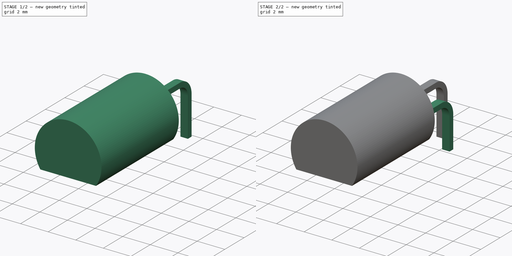
[diagram: build sequence overview — one tinted view per stage of 2, left to right]
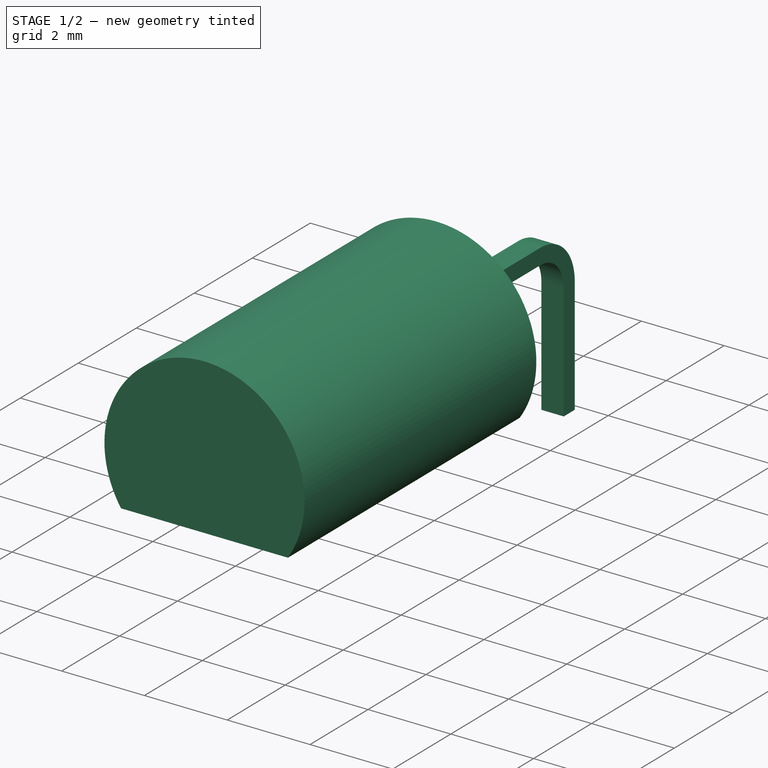
[diagram: stage 1 of 2 — iso view after this stage's code; geometry added in this stage tinted green]
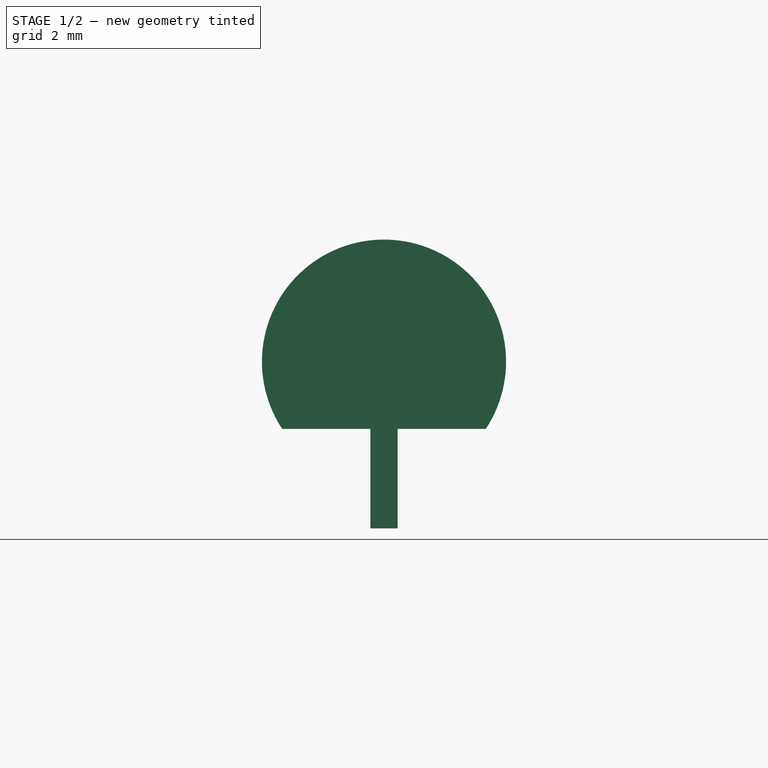
[diagram: stage 1 of 2 — front view after this stage's code; geometry added in this stage tinted green]
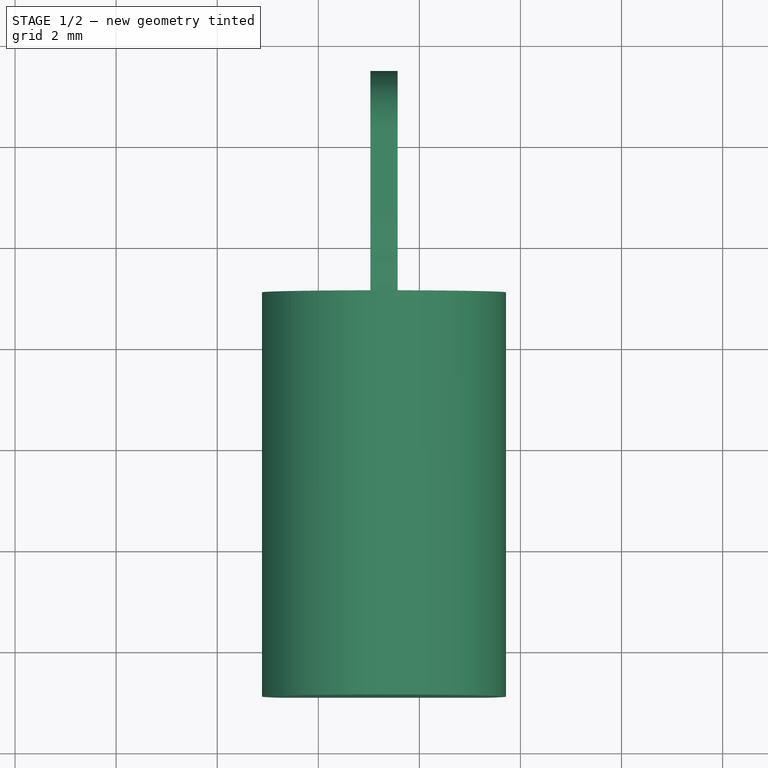
[diagram: stage 1 of 2 — top view after this stage's code; geometry added in this stage tinted green]
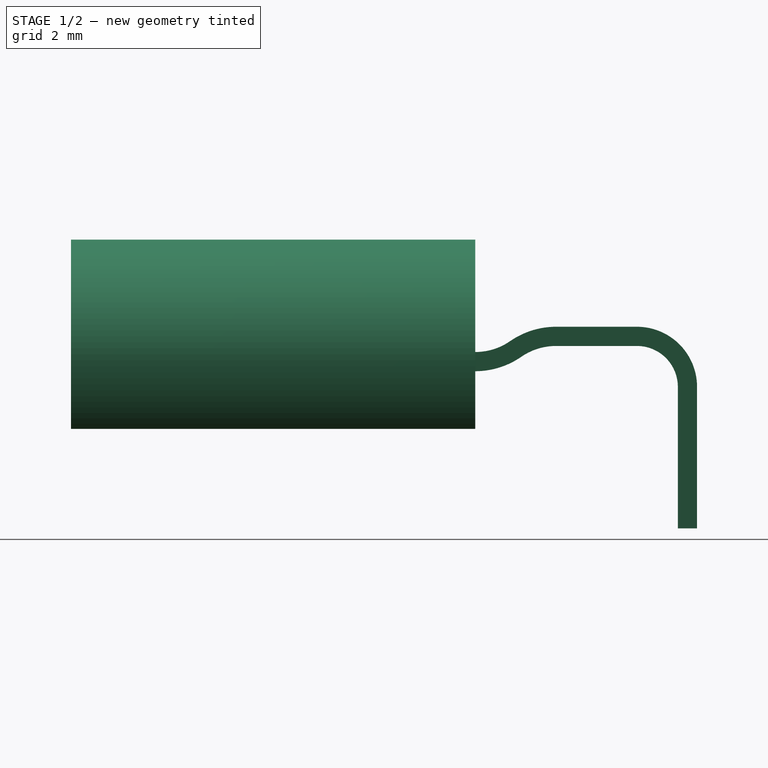
[diagram: stage 1 of 2 — right view after this stage's code; geometry added in this stage tinted green]
FCSTD DOCUMENT  (FreeCAD 1.0R38806 (Git))
Label: TO-92L bent
License: All rights reserved
LicenseURL: http://en.wikipedia.org/wiki/All_rights_reserved
objects: Sketcher::SketchObject×10, PartDesign::SubShapeBinder×8, PartDesign::Body×5, PartDesign::AdditivePipe×3, PartDesign::Plane×2, PartDesign::Pad×1
note: 47 computed .brp shape members not serialized (recipe doc carries the construction recipe); baked Part::Feature solids carry a one-line shape summary decoded from their .brp

FEATURE [PartDesign::Body] Body002  label="Pin 2"
  AllowCompound = false
  Group = -> [Binder002,Binder003,Sketch007,Sketch008,AdditivePipe001]
  Origin = -> Origin003
  Tip = -> AdditivePipe001
FEATURE [PartDesign::SubShapeBinder] Binder004  label="p3 ref footprint"
  BindCopyOnChange = 0
  BindMode = 0
  ClaimChildren = false
  Context = -> Body003 [Binder004.]
  Fuse = false
  MakeFace = true
  OffsetFill = false
  OffsetIntersection = false
  OffsetJoinType = 0
  OffsetOpenResult = false
  PartialLoad = false
  Refine = true
  Relative = true
  Support = -> [Body[Sketch.]]
  _Version = 2
FEATURE [PartDesign::SubShapeBinder] Binder005  label="p3 ref curve"
  BindCopyOnChange = 0
  BindMode = 0
  ClaimChildren = false
  Context = -> Body003 [Binder005.]
  Fuse = false
  MakeFace = true
  OffsetFill = false
  OffsetIntersection = false
  OffsetJoinType = 0
  OffsetOpenResult = false
  PartialLoad = false
  Refine = true
  Relative = true
  Support = -> [Body[Sketch001.]]
  _Version = 2
FEATURE [Sketcher::SketchObject] Sketch009  label="p3 pin trj"
  ArcFitTolerance = 1e-06
  AttachmentSupport = -> [YZ_Plane004]
  ExternalGeometry = -> [Binder004,Binder005]
  FullyConstrained = true
  MakeInternals = false
  MapMode = 5
  Placement = pos=(0,0,0) rot=(0.57735,0.57735,0.57735;2.0944rad)
  sketch-geometry (5):
    g0: LineSegment StartX=1.27 StartY=-2 StartZ=0 EndX=1.27 EndY=0.8 EndZ=0
    g1: ArcOfCircle CenterX=0.27 CenterY=0.8 CenterZ=0 NormalX=0 NormalY=0 NormalZ=1 AngleXU=0 Radius=1 StartAngle=8.8e-15 EndAngle=1.5708
    g2: ArcOfCircle CenterX=-2.9292 CenterY=2.705 CenterZ=0 NormalX=0 NormalY=0 NormalZ=1 AngleXU=0 Radius=1.405 StartAngle=4.71239 EndAngle=5.31816
    g3: ArcOfCircle CenterX=-1.3292 CenterY=0.395 CenterZ=0 NormalX=0 NormalY=0 NormalZ=1 AngleXU=0 Radius=1.405 StartAngle=1.5708 EndAngle=2.17657
    g4: LineSegment StartX=-1.3292 StartY=1.8 StartZ=0 EndX=0.27 EndY=1.8 EndZ=0
  constraints (13):
    c: Vertical(g0)
    c: PointOnObject(g-3,g0)
    c: Horizontal(g-4,g0)
    c: Tangent(g2,g3) = 1.5708
    c: Horizontal(g4)
    c: Tangent(g0,g1) = -1.5708
    c: Tangent(g1,g4) = 1.5708
    c: Equal(g-6,g1)
    c: Tangent(g3,g4) = 1.5708
    c: DistanceY(g-6,g3) = 0.5
    c: Equal(g3,g2)
    c: Tangent(g2,g-5) = 1.5708
    c: DistanceX(g2,g3) = 1.6
FEATURE [Sketcher::SketchObject] Sketch010  label="p3 pin crs"
  ArcFitTolerance = 1e-06
  AttachmentSupport = -> [XY_Plane004]
  ExternalGeometry = -> [Binder004]
  FullyConstrained = true
  MakeInternals = false
  MapMode = 5
  sketch-geometry (4):
    g0: LineSegment StartX=1.03 StartY=1.46 StartZ=0 EndX=1.03 EndY=1.08 EndZ=0
    g1: LineSegment StartX=1.03 StartY=1.08 StartZ=0 EndX=1.57 EndY=1.08 EndZ=0
    g2: LineSegment StartX=1.57 StartY=1.08 StartZ=0 EndX=1.57 EndY=1.46 EndZ=0
    g3: LineSegment StartX=1.57 StartY=1.46 StartZ=0 EndX=1.03 EndY=1.46 EndZ=0
  constraints (10):
    c: Coincident(g0,g1)
    c: Coincident(g1,g2)
    c: Coincident(g2,g3)
    c: Coincident(g3,g0)
    c: Vertical(g0)
    c: Vertical(g2)
    c: Horizontal(g1)
    c: Horizontal(g3)
    c: Coincident(g0,g-3)
    c: Coincident(g2,g-4)
FEATURE [PartDesign::AdditivePipe] AdditivePipe002
  AuxilleryCurvelinear = true
  AuxillerySpineTangent = false
  Binormal = (0,0,0)
  Mode = 0
  Profile = -> Sketch010
  Refine = true
  Spine = -> Sketch009
  SpineTangent = false
  Suppressed = false
  Transformation = 0
  Transition = 0
FEATURE [PartDesign::Body] Body003  label="Pin 3"
  AllowCompound = false
  Group = -> [Binder004,Binder005,Sketch009,Sketch010,AdditivePipe002]
  Origin = -> Origin004
  Tip = -> AdditivePipe002
FEATURE [PartDesign::SubShapeBinder] Binder007  label="hs ref housing"
  BindCopyOnChange = 0
  BindMode = 0
  ClaimChildren = false
  Context = -> Body004 [Binder007.]
  Fuse = false
  MakeFace = true
  OffsetFill = false
  OffsetIntersection = false
  OffsetJoinType = 0
  OffsetOpenResult = false
  PartialLoad = false
  Refine = true
  Relative = true
  Support = -> [Body[Sketch004.]]
  _Version = 2
FEATURE [PartDesign::SubShapeBinder] Binder008  label="hs ref pins curve"
  BindCopyOnChange = 0
  BindMode = 0
  ClaimChildren = false
  Context = -> Body004 [Binder008.]
  Fuse = false
  MakeFace = true
  OffsetFill = false
  OffsetIntersection = false
  OffsetJoinType = 0
  OffsetOpenResult = false
  PartialLoad = false
  Refine = true
  Relative = true
  Support = -> [Body[Sketch001.]]
  _Version = 2
FEATURE [PartDesign::Plane] DatumPlane001  label="hs pln housing"
  AttachmentSupport = -> [Binder008]
  Length = 60
  MapMode = 7
  Placement = pos=(0,-2.9292,1.3) rot=(0,0.707107,0.707107;3.14159rad)
  ResizeMode = 0
  Width = 60
FEATURE [Sketcher::SketchObject] Sketch011
  ArcFitTolerance = 1e-06
  AttachmentSupport = -> [DatumPlane001]
  ExternalGeometry = -> [Binder007]
  FullyConstrained = true
  MakeInternals = false
  MapMode = 5
  Placement = pos=(0,-2.9292,1.3) rot=(0,0.707107,0.707107;3.14159rad)
  sketch-geometry (2):
    g0: ArcOfCircle CenterX=-1.3 CenterY=2e-16 CenterZ=0 NormalX=0 NormalY=0 NormalZ=1 AngleXU=0 Radius=2.415 StartAngle=5.69995 EndAngle=10.008
    g1: LineSegment StartX=-3.31577 StartY=-1.33 StartZ=0 EndX=0.715769 EndY=-1.33 EndZ=0
  constraints (5):
    c: Coincident(g0,g-3)
    c: Coincident(g1,g0)
    c: Coincident(g1,g0)
    c: Horizontal(g1)
    c: Coincident(g0,g-3)
FEATURE [PartDesign::Pad] Pad  label="HS Housing"
  Direction = (0,1,-2e-16)
  Length = 8
  Length2 = 10
  Placement = pos=(0,-2.9292,1.3) rot=(0,0.707107,0.707107;3.14159rad)
  Profile = -> Sketch011
  ReferenceAxis = -> Sketch011 [N_Axis]
  Refine = true
  Reversed = true
  Suppressed = false
  Type = 0
FEATURE [PartDesign::Body] Body004  label="Housing"
  AllowCompound = false
  Group = -> [Binder007,Binder008,DatumPlane001,Sketch011,Pad]
  Origin = -> Origin005
  Tip = -> Pad
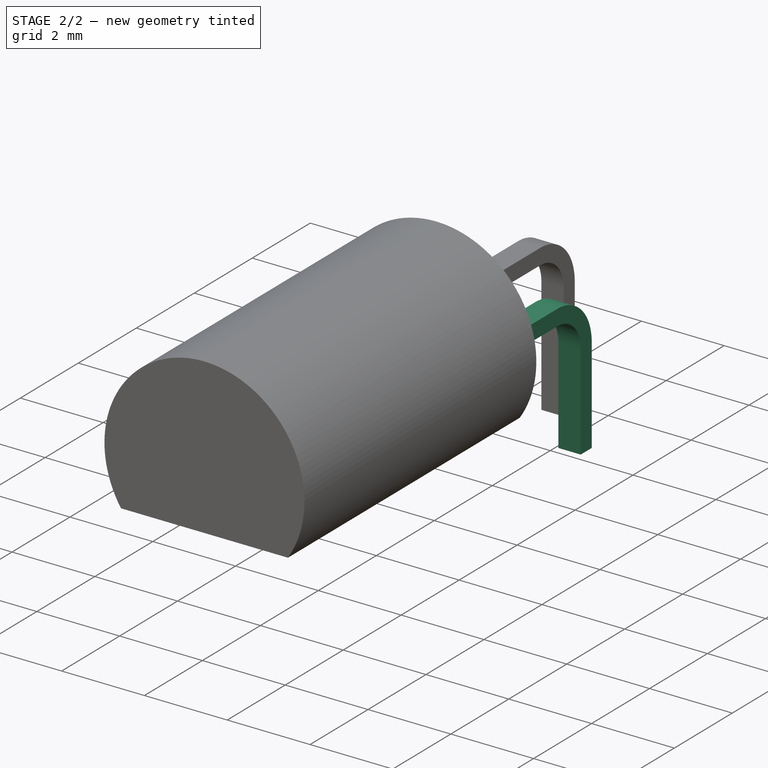
[diagram: stage 2 of 2 — iso view after this stage's code; geometry added in this stage tinted green]
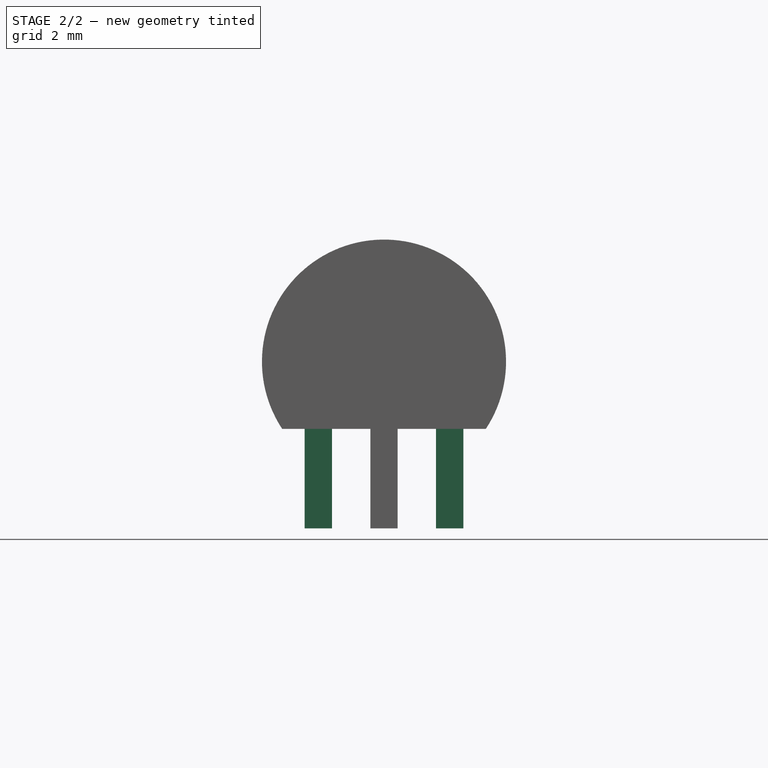
[diagram: stage 2 of 2 — front view after this stage's code; geometry added in this stage tinted green]
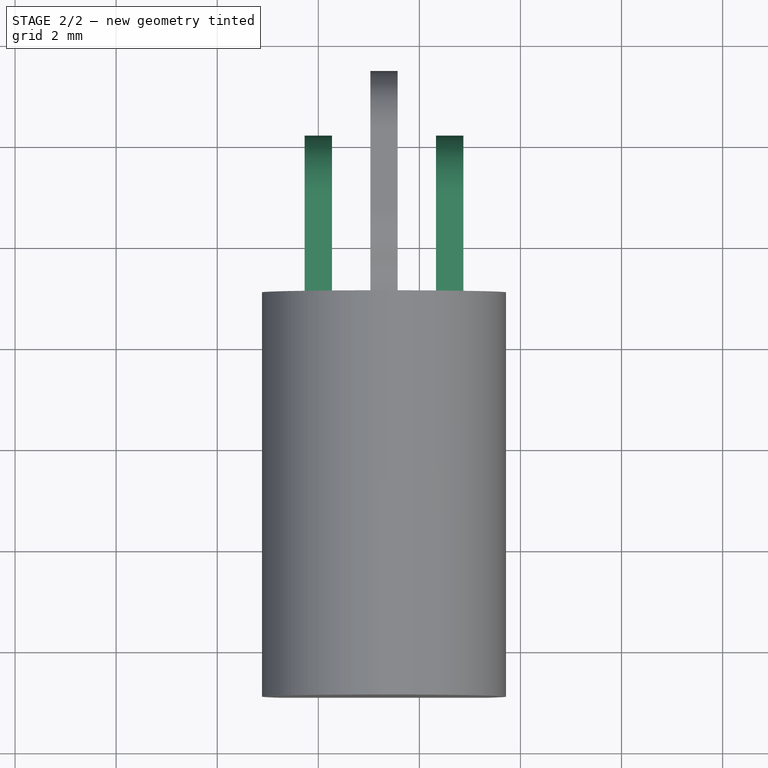
[diagram: stage 2 of 2 — top view after this stage's code; geometry added in this stage tinted green]
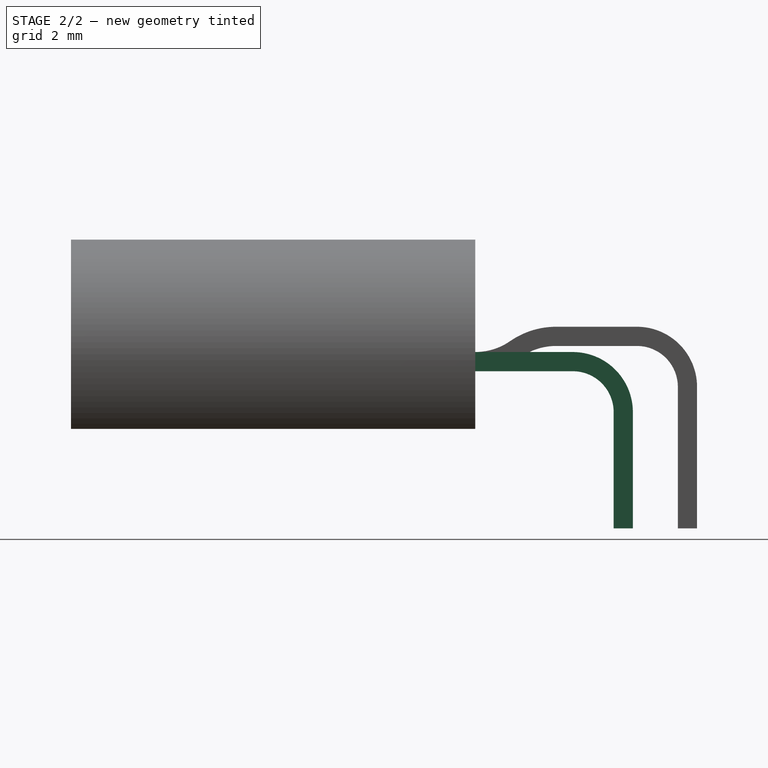
[diagram: stage 2 of 2 — right view after this stage's code; geometry added in this stage tinted green]
FEATURE [Sketcher::SketchObject] Sketch  label="sk pins footprint"
  ArcFitTolerance = 1e-06
  AttachmentSupport = -> [XY_Plane]
  FullyConstrained = true
  MakeInternals = false
  MapMode = 5
  sketch-geometry (14):
    g0: LineSegment StartX=-0.27 StartY=0.19 StartZ=0 EndX=-0.27 EndY=-0.19 EndZ=0
    g1: LineSegment StartX=-0.27 StartY=-0.19 StartZ=0 EndX=0.27 EndY=-0.19 EndZ=0
    g2: LineSegment StartX=0.27 StartY=-0.19 StartZ=0 EndX=0.27 EndY=0.19 EndZ=0
    g3: LineSegment StartX=0.27 StartY=0.19 StartZ=0 EndX=-0.27 EndY=0.19 EndZ=0
    g4: LineSegment StartX=1.03 StartY=1.46 StartZ=0 EndX=1.03 EndY=1.08 EndZ=0
    g5: LineSegment StartX=1.03 StartY=1.08 StartZ=0 EndX=1.57 EndY=1.08 EndZ=0
    g6: LineSegment StartX=1.57 StartY=1.08 StartZ=0 EndX=1.57 EndY=1.46 EndZ=0
    g7: LineSegment StartX=1.57 StartY=1.46 StartZ=0 EndX=1.03 EndY=1.46 EndZ=0
    g8: LineSegment StartX=2.33 StartY=0.19 StartZ=0 EndX=2.33 EndY=-0.19 EndZ=0
    g9: LineSegment StartX=2.33 StartY=-0.19 StartZ=0 EndX=2.87 EndY=-0.19 EndZ=0
    g10: LineSegment StartX=2.87 StartY=-0.19 StartZ=0 EndX=2.87 EndY=0.19 EndZ=0
    g11: LineSegment StartX=2.87 StartY=0.19 StartZ=0 EndX=2.33 EndY=0.19 EndZ=0
    g12: LineSegment StartX=1.3 StartY=1.27 StartZ=0 EndX=1.3 EndY=1.08 EndZ=0
    g13: LineSegment StartX=2.6 StartY=-0.19 StartZ=0 EndX=2.6 EndY=0 EndZ=0
  constraints (38):
    c: Coincident(g0,g1)
    c: Coincident(g1,g2)
    c: Coincident(g2,g3)
    c: Coincident(g3,g0)
    c: Vertical(g0)
    c: Vertical(g2)
    c: Horizontal(g1)
    c: Horizontal(g3)
    c: Coincident(g4,g5)
    c: Coincident(g5,g6)
    c: Coincident(g6,g7)
    c: Coincident(g7,g4)
    c: Vertical(g4)
    c: Vertical(g6)
    c: Horizontal(g5)
    c: Horizontal(g7)
    c: Coincident(g8,g9)
    c: Coincident(g9,g10)
    c: Coincident(g10,g11)
    c: Coincident(g11,g8)
    c: Vertical(g10)
    c: Horizontal(g9)
    c: Horizontal(g11)
    c: Distance(g2,g2) = 0.38
    c: DistanceX(g3,g3) = 0.54
    c: Symmetric(g0,g2,g-1)
    c: Equal(g0,g4)
    c: Equal(g3,g7)
    c: Equal(g3,g11)
    c: Symmetric(g8,g8,g-1)
    c: DistanceY(g1,g4) = 1.27
    c: PointOnObject(g12,g5)
    c: Symmetric(g4,g6,g12)
    c: Symmetric(g9,g9,g13)
    c: Symmetric(g8,g10,g13)
    c: DistanceX(g-1,g13) = 2.6
    c: Symmetric(g-1,g13,g12)
    c: Equal(g10,g2)
FEATURE [Sketcher::SketchObject] Sketch001  label="sk 2 pins curve"
  ArcFitTolerance = 1e-06
  AttachmentSupport = -> [YZ_Plane]
  FullyConstrained = true
  MakeInternals = false
  MapMode = 5
  Placement = pos=(0,0,0) rot=(0.57735,0.57735,0.57735;2.0944rad)
  sketch-geometry (3):
    g0: ArcOfCircle CenterX=-1 CenterY=0.3 CenterZ=0 NormalX=0 NormalY=0 NormalZ=1 AngleXU=0 Radius=1 StartAngle=0 EndAngle=1.5708
    g1: LineSegment StartX=-1 StartY=1.3 StartZ=0 EndX=-2.9292 EndY=1.3 EndZ=0
    g2: LineSegment StartX=0 StartY=0.3 StartZ=0 EndX=0 EndY=-2 EndZ=0
  constraints (9):
    c: Horizontal(g1)
    c: Tangent(g2,g0) = 1.5708
    c: Tangent(g0,g1) = -1.5708
    c: DistanceX(g1,g1) = 1.9292
    c: Vertical(g2)
    c: PointOnObject(g2,g-2)
    c: DistanceY(g2,g-1) = 2
    c: DistanceY(g-1,g1) = 1.3
    c: Radius(g0) = 1
FEATURE [Sketcher::SketchObject] Sketch004  label="sk housing top"
  ArcFitTolerance = 1e-06
  AttachmentSupport = -> [XZ_Plane]
  ExternalGeometry = -> [Sketch,Sketch001]
  FullyConstrained = true
  MakeInternals = false
  MapMode = 5
  Placement = pos=(0,0,0) rot=(1,0,0;1.5708rad)
  sketch-geometry (2):
    g0: ArcOfCircle CenterX=1.3 CenterY=1.3 CenterZ=0 NormalX=0 NormalY=0 NormalZ=1 AngleXU=0 Radius=2.415 StartAngle=5.69995 EndAngle=10.008
    g1: LineSegment StartX=3.31577 StartY=-0.03 StartZ=0 EndX=-0.715769 EndY=-0.03 EndZ=0
  constraints (7):
    c: Horizontal(g1)
    c: Coincident(g0,g1)
    c: Coincident(g0,g1)
    c: Radius(g0) = 2.415
    c: Vertical(g0,g-3)
    c: DistanceY(g0,g-4) = 1.33
    c: Horizontal(g0,g-4)
FEATURE [PartDesign::Plane] DatumPlane  label="sk pln housing start"
  AttachmentSupport = -> [Sketch001]
  Length = 60
  MapMode = 7
  Placement = pos=(0,-2.9292,1.3) rot=(0,0.707107,0.707107;3.14159rad)
  ResizeMode = 0
  Width = 60
FEATURE [PartDesign::Body] Body  label="Skeleton"
  AllowCompound = false
  Group = -> [Sketch,Sketch001,Sketch004,DatumPlane]
  Origin = -> Origin
FEATURE [PartDesign::SubShapeBinder] Binder  label="p1 ref footprint"
  BindCopyOnChange = 0
  BindMode = 0
  ClaimChildren = false
  Context = -> Body001 [Binder.]
  Fuse = false
  MakeFace = true
  OffsetFill = false
  OffsetIntersection = false
  OffsetJoinType = 0
  OffsetOpenResult = false
  PartialLoad = false
  Refine = true
  Relative = true
  Support = -> [Body[Sketch.]]
  _Version = 2
FEATURE [PartDesign::SubShapeBinder] Binder001  label="p1 ref curve"
  BindCopyOnChange = 0
  BindMode = 0
  ClaimChildren = false
  Context = -> Body001 [Binder001.]
  Fuse = false
  MakeFace = true
  OffsetFill = false
  OffsetIntersection = false
  OffsetJoinType = 0
  OffsetOpenResult = false
  PartialLoad = false
  Refine = true
  Relative = true
  Support = -> [Body[Sketch001.]]
  _Version = 2
FEATURE [Sketcher::SketchObject] Sketch005  label="p1 pin trj"
  ArcFitTolerance = 1e-06
  AttachmentSupport = -> [YZ_Plane002]
  ExternalGeometry = -> [Binder001]
  FullyConstrained = true
  MakeInternals = false
  MapMode = 5
  Placement = pos=(0,0,0) rot=(0.57735,0.57735,0.57735;2.0944rad)
  sketch-geometry (3):
    g0: LineSegment StartX=-2.9292 StartY=1.3 StartZ=0 EndX=-1 EndY=1.3 EndZ=0
    g1: ArcOfCircle CenterX=-1 CenterY=0.3 CenterZ=0 NormalX=0 NormalY=0 NormalZ=1 AngleXU=0 Radius=1 StartAngle=1e-16 EndAngle=1.5708
    g2: LineSegment StartX=0 StartY=0.3 StartZ=0 EndX=0 EndY=-2 EndZ=0
  constraints (8):
    c: Horizontal(g0)
    c: Coincident(g1,g-4)
    c: Tangent(g0,g1) = 1.5708
    c: Vertical(g2)
    c: Tangent(g1,g2) = 1.5708
    c: Horizontal(g2,g-3)
    c: Vertical(g0,g-5)
    c: Equal(g1,g-4)
FEATURE [Sketcher::SketchObject] Sketch006  label="p1 pin crs"
  ArcFitTolerance = 1e-06
  AttachmentSupport = -> [XY_Plane002]
  ExternalGeometry = -> [Binder]
  FullyConstrained = true
  MakeInternals = false
  MapMode = 5
  sketch-geometry (4):
    g0: LineSegment StartX=-0.27 StartY=-0.19 StartZ=0 EndX=0.27 EndY=-0.19 EndZ=0
    g1: LineSegment StartX=0.27 StartY=-0.19 StartZ=0 EndX=0.27 EndY=0.19 EndZ=0
    g2: LineSegment StartX=0.27 StartY=0.19 StartZ=0 EndX=-0.27 EndY=0.19 EndZ=0
    g3: LineSegment StartX=-0.27 StartY=0.19 StartZ=0 EndX=-0.27 EndY=-0.19 EndZ=0
  constraints (10):
    c: Coincident(g0,g1)
    c: Coincident(g1,g2)
    c: Coincident(g2,g3)
    c: Coincident(g3,g0)
    c: Horizontal(g0)
    c: Horizontal(g2)
    c: Vertical(g1)
    c: Vertical(g3)
    c: Coincident(g1,g-3)
    c: Coincident(g0,g-4)
FEATURE [PartDesign::AdditivePipe] AdditivePipe  label="P1 Pin"
  AuxilleryCurvelinear = true
  AuxillerySpineTangent = false
  Binormal = (0,0,0)
  Mode = 0
  Profile = -> Sketch006
  Refine = true
  Spine = -> Sketch005
  SpineTangent = false
  Suppressed = false
  Transformation = 0
  Transition = 0
FEATURE [PartDesign::Body] Body001  label="Pin 1"
  AllowCompound = false
  Group = -> [Binder,Binder001,Sketch005,Sketch006,AdditivePipe]
  Origin = -> Origin002
  Tip = -> AdditivePipe
FEATURE [PartDesign::SubShapeBinder] Binder002  label="p2 ref footprint"
  BindCopyOnChange = 0
  BindMode = 0
  ClaimChildren = false
  Context = -> Body002 [Binder002.]
  Fuse = false
  MakeFace = true
  OffsetFill = false
  OffsetIntersection = false
  OffsetJoinType = 0
  OffsetOpenResult = false
  PartialLoad = false
  Refine = true
  Relative = true
  Support = -> [Body[Sketch.]]
  _Version = 2
FEATURE [PartDesign::SubShapeBinder] Binder003  label="p2 ref curve"
  BindCopyOnChange = 0
  BindMode = 0
  ClaimChildren = false
  Context = -> Body002 [Binder003.]
  Fuse = false
  MakeFace = true
  OffsetFill = false
  OffsetIntersection = false
  OffsetJoinType = 0
  OffsetOpenResult = false
  PartialLoad = false
  Refine = true
  Relative = true
  Support = -> [Body[Sketch001.]]
  _Version = 2
FEATURE [Sketcher::SketchObject] Sketch007  label="p2 pin trj"
  ArcFitTolerance = 1e-06
  AttachmentSupport = -> [YZ_Plane003]
  ExternalGeometry = -> [Binder003]
  FullyConstrained = true
  MakeInternals = false
  MapMode = 5
  Placement = pos=(0,0,0) rot=(0.57735,0.57735,0.57735;2.0944rad)
  sketch-geometry (3):
    g0: LineSegment StartX=-2.9292 StartY=1.3 StartZ=0 EndX=-1 EndY=1.3 EndZ=0
    g1: ArcOfCircle CenterX=-1 CenterY=0.3 CenterZ=0 NormalX=0 NormalY=0 NormalZ=1 AngleXU=0 Radius=1 StartAngle=1e-16 EndAngle=1.5708
    g2: LineSegment StartX=0 StartY=0.3 StartZ=0 EndX=0 EndY=-2 EndZ=0
  constraints (8):
    c: Horizontal(g0)
    c: Coincident(g1,g-4)
    c: Tangent(g0,g1) = 1.5708
    c: Vertical(g2)
    c: Tangent(g1,g2) = 1.5708
    c: Horizontal(g2,g-3)
    c: Vertical(g0,g-5)
    c: Equal(g1,g-4)
FEATURE [Sketcher::SketchObject] Sketch008  label="p2 pin crs"
  ArcFitTolerance = 1e-06
  AttachmentSupport = -> [XY_Plane003]
  ExternalGeometry = -> [Binder002]
  FullyConstrained = true
  MakeInternals = false
  MapMode = 5
  sketch-geometry (4):
    g0: LineSegment StartX=2.33 StartY=-0.19 StartZ=0 EndX=2.87 EndY=-0.19 EndZ=0
    g1: LineSegment StartX=2.87 StartY=-0.19 StartZ=0 EndX=2.87 EndY=0.19 EndZ=0
    g2: LineSegment StartX=2.87 StartY=0.19 StartZ=0 EndX=2.33 EndY=0.19 EndZ=0
    g3: LineSegment StartX=2.33 StartY=0.19 StartZ=0 EndX=2.33 EndY=-0.19 EndZ=0
  constraints (10):
    c: Coincident(g0,g1)
    c: Coincident(g1,g2)
    c: Coincident(g2,g3)
    c: Coincident(g3,g0)
    c: Horizontal(g0)
    c: Horizontal(g2)
    c: Vertical(g1)
    c: Vertical(g3)
    c: Coincident(g1,g-4)
    c: Coincident(g0,g-3)
FEATURE [PartDesign::AdditivePipe] AdditivePipe001  label="P2 Pin"
  AuxilleryCurvelinear = true
  AuxillerySpineTangent = false
  Binormal = (0,0,0)
  Mode = 0
  Profile = -> Sketch008
  Refine = true
  Spine = -> Sketch007
  SpineTangent = false
  Suppressed = false
  Transformation = 0
  Transition = 0
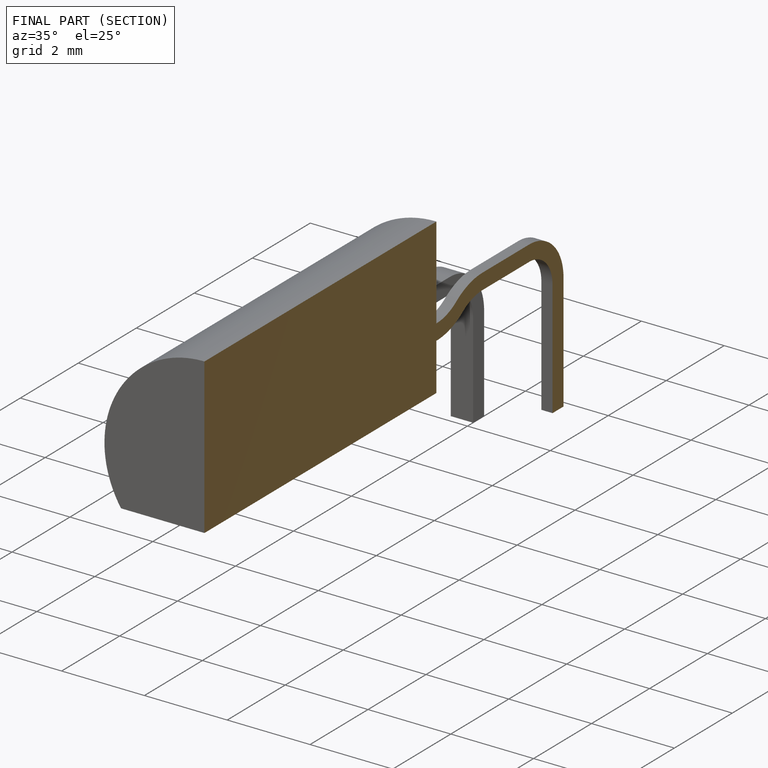
[diagram: finished part — half-section view (interior)]
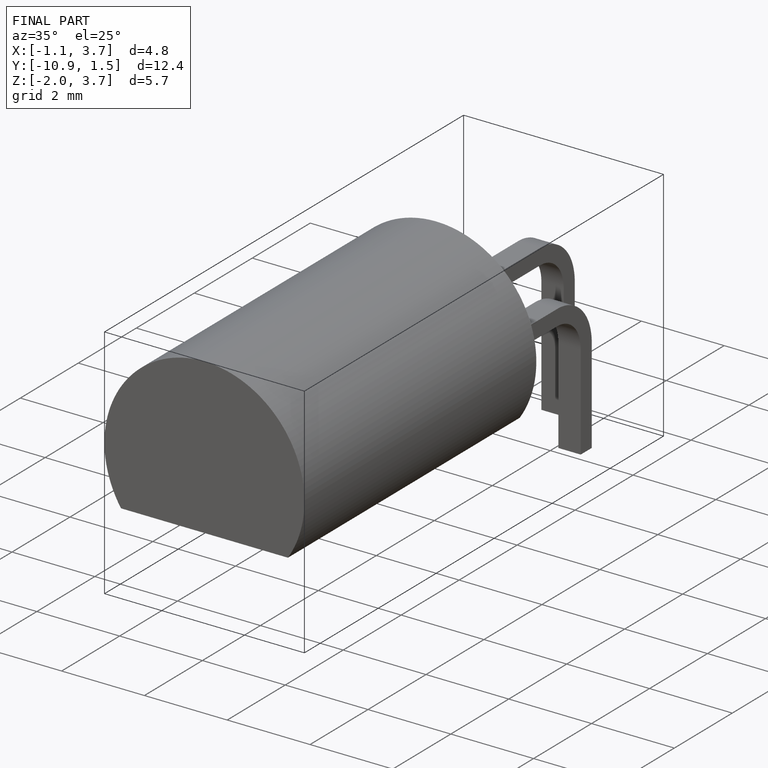
[diagram: finished part — iso view with bounding-box wireframe]
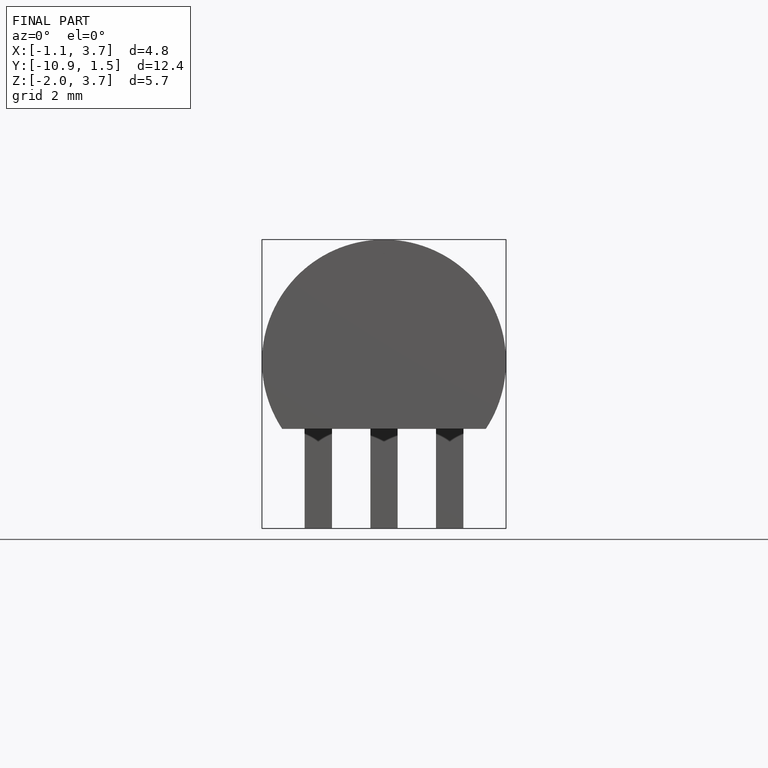
[diagram: finished part — front view with bounding-box wireframe]
